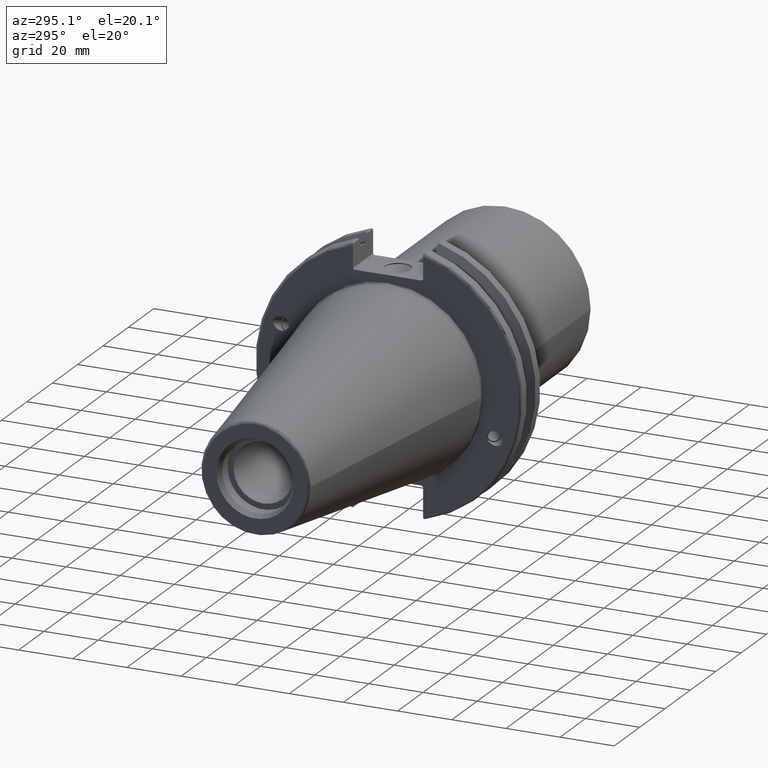
[diagram: clean part render]
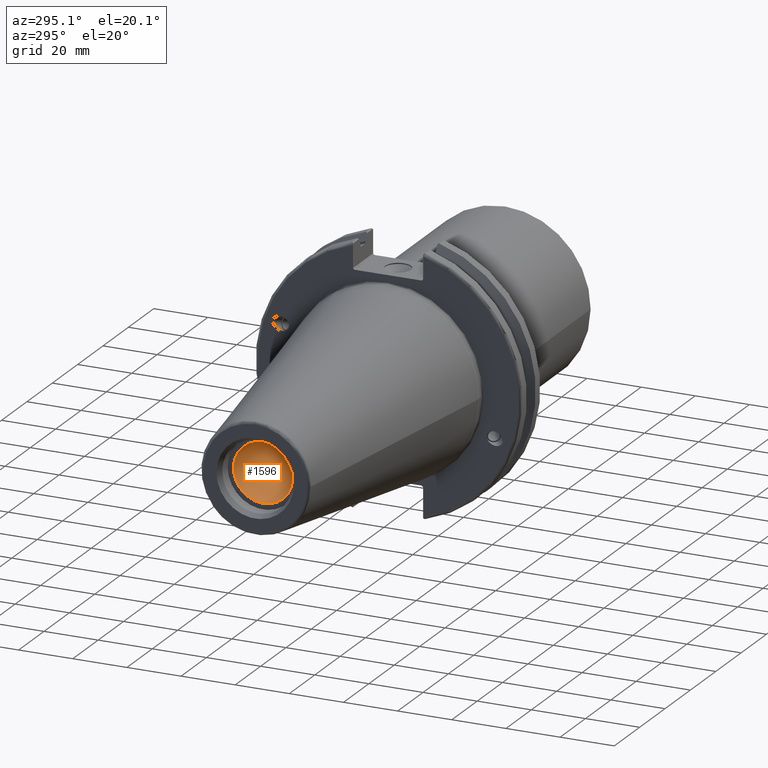
[diagram: same view with one face highlighted and labeled with its STEP entity id]
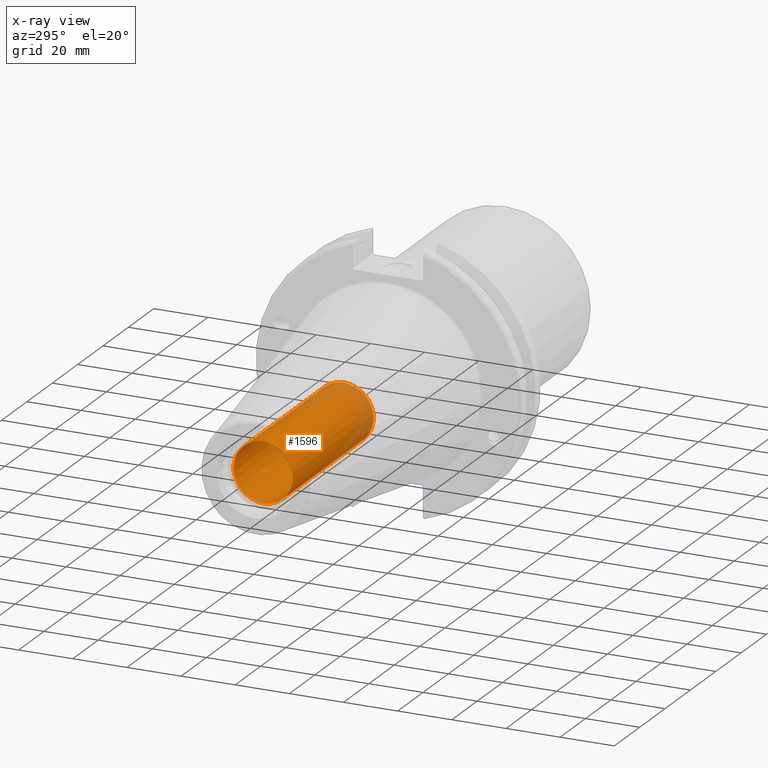
[diagram: x-ray of the same camera — body ghosted, the highlighted face saturated]
A machine part, auxiliary view. The second image highlights one B-rep face of the part: STEP entity #1596.
The next image is the same camera in x-ray: the body ghosted, the highlighted face saturated — about 17% of this face is hidden behind the body in this view.
In plain terms, the highlighted cylindrical surface (bore or boss wall) has radius 10.9855 mm, axis along (-1, 0, 0).
Its self-contained STEP definition (entity closure, byte-faithful):
#166=FACE_OUTER_BOUND('',#277,.T.);
#277=EDGE_LOOP('',(#1277,#1278,#1279,#1280));
#422=LINE('',#3070,#516);
#516=VECTOR('',#2086,10.9855);
#614=CIRCLE('',#1762,10.9855);
#615=CIRCLE('',#1764,10.9855);
#749=VERTEX_POINT('',#3064);
#750=VERTEX_POINT('',#3068);
#942=EDGE_CURVE('',#749,#749,#614,.T.);
#944=EDGE_CURVE('',#750,#750,#615,.T.);
#945=EDGE_CURVE('',#750,#749,#422,.T.);
#1277=ORIENTED_EDGE('',*,*,#944,.F.);
#1278=ORIENTED_EDGE('',*,*,#945,.T.);
#1279=ORIENTED_EDGE('',*,*,#942,.F.);
#1280=ORIENTED_EDGE('',*,*,#945,.F.);
#1542=CYLINDRICAL_SURFACE('',#1763,10.9855);
#1596=ADVANCED_FACE('',(#166),#1542,.F.);
#1762=AXIS2_PLACEMENT_3D('',#3065,#2079,#2080);
#1763=AXIS2_PLACEMENT_3D('',#3067,#2082,#2083);
#1764=AXIS2_PLACEMENT_3D('',#3069,#2084,#2085);
#2079=DIRECTION('center_axis',(-1.,0.,0.));
#2080=DIRECTION('ref_axis',(0.,0.,1.));
#2082=DIRECTION('center_axis',(-1.,0.,0.));
#2083=DIRECTION('ref_axis',(0.,0.,1.));
#2084=DIRECTION('center_axis',(1.,0.,0.));
#2085=DIRECTION('ref_axis',(0.,0.,1.));
#2086=DIRECTION('',(1.,0.,0.));
#3064=CARTESIAN_POINT('',(-31.6,-1.34533574120333E-15,-10.9855));
#3065=CARTESIAN_POINT('Origin',(-31.6,0.,0.));
#3067=CARTESIAN_POINT('Origin',(-66.6,0.,0.));
#3068=CARTESIAN_POINT('',(-95.25,1.34533574120333E-15,-10.9855));
#3069=CARTESIAN_POINT('Origin',(-95.25,0.,0.));
#3070=CARTESIAN_POINT('',(-66.6,-1.34533574120333E-15,-10.9855));